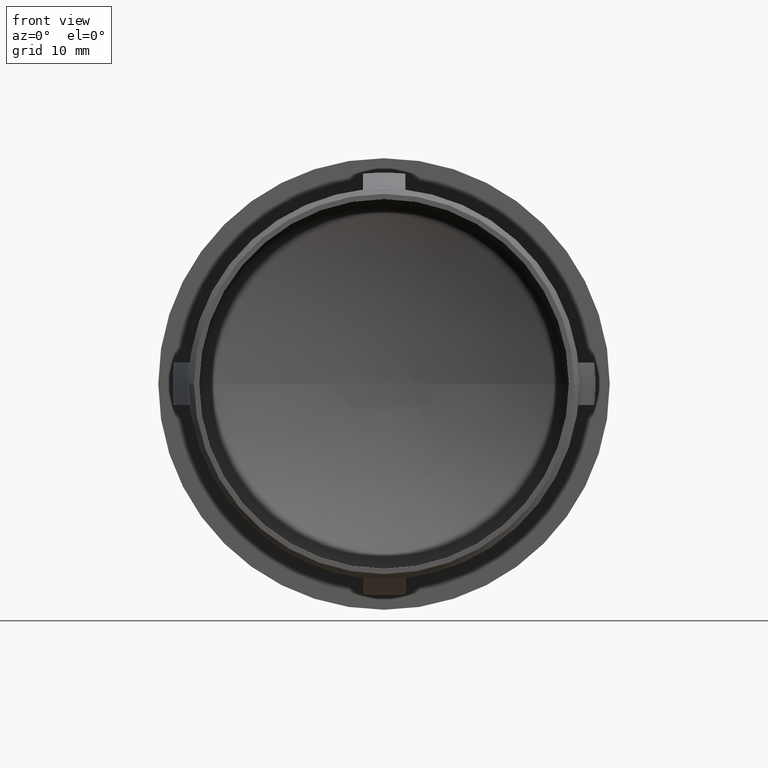
[diagram: clean part render]
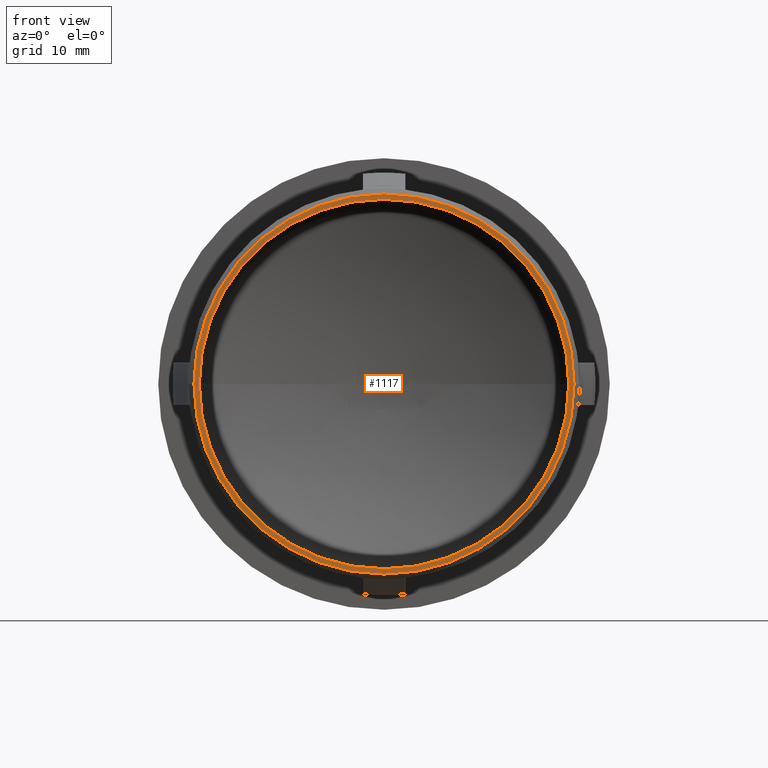
[diagram: same view with one face highlighted and labeled with its STEP entity id]
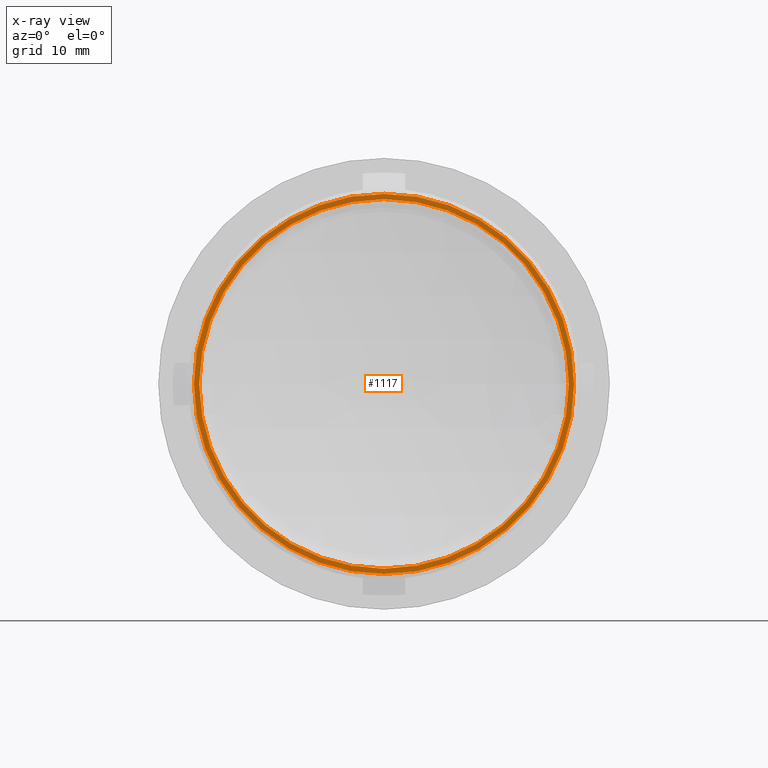
[diagram: x-ray of the same camera — body ghosted, the highlighted face saturated]
A machine part, front view. The second image highlights one B-rep face of the part: STEP entity #1117.
The next image is the same camera in x-ray: the body ghosted, the highlighted face saturated — about 0% of this face is hidden behind the body in this view.
In plain terms, the highlighted planar face has unit normal (0, -1, -0).
Its self-contained STEP definition (entity closure, byte-faithful):
#843 = AXIS2_PLACEMENT_3D ( 'NONE', #8685, #8786, #2730 ) ;
#1069 = DIRECTION ( 'NONE',  ( 1.421951005676655478E-15, -1.000000000000000000, -0.000000000000000000 ) ) ;
#1117 = ADVANCED_FACE ( 'NONE', ( #2623, #8059 ), #13163, .T. ) ;
#1259 = DIRECTION ( 'NONE',  ( 1.421951005676655478E-15, -1.000000000000000000, -0.000000000000000000 ) ) ;
#1292 = AXIS2_PLACEMENT_3D ( 'NONE', #1359, #13342, #14589 ) ;
#1359 = CARTESIAN_POINT ( 'NONE',  ( 4.763535869016798367E-14, -2.775557561562891351E-14, 0.000000000000000000 ) ) ;
#2161 = CARTESIAN_POINT ( 'NONE',  ( -17.84999999999992326, -5.086162264658828411E-14, 0.000000000000000000 ) ) ;
#2314 = CIRCLE ( 'NONE', #1292, 17.34999999999995524 ) ;
#2623 = FACE_OUTER_BOUND ( 'NONE', #5416, .T. ) ;
#2730 = DIRECTION ( 'NONE',  ( 1.000000000000000000, 1.421951005676655478E-15, 0.000000000000000000 ) ) ;
#3424 = AXIS2_PLACEMENT_3D ( 'NONE', #8401, #1259, #3655 ) ;
#3436 = EDGE_CURVE ( 'NONE', #10400, #14406, #6083, .T. ) ;
#3530 = CARTESIAN_POINT ( 'NONE',  ( 18.35000000000000142, 6.130037589065356566E-16, 0.000000000000000000 ) ) ;
#3655 = DIRECTION ( 'NONE',  ( 1.000000000000000000, 1.421951005676655478E-15, 0.000000000000000000 ) ) ;
#4810 = DIRECTION ( 'NONE',  ( 1.421951005676655281E-15, -1.000000000000000000, -0.000000000000000000 ) ) ;
#4938 = AXIS2_PLACEMENT_3D ( 'NONE', #3530, #4810, #14365 ) ;
#5020 = CIRCLE ( 'NONE', #843, 17.84999999999997300 ) ;
#5149 = EDGE_CURVE ( 'NONE', #8644, #12681, #5020, .T. ) ;
#5416 = EDGE_LOOP ( 'NONE', ( #13953, #7065 ) ) ;
#6083 = CIRCLE ( 'NONE', #3424, 17.34999999999995524 ) ;
#6906 = CARTESIAN_POINT ( 'NONE',  ( 17.85000000000002274, -9.797174393176153884E-17, 2.216610706456705235E-15 ) ) ;
#7065 = ORIENTED_EDGE ( 'NONE', *, *, #10969, .T. ) ;
#8059 = FACE_BOUND ( 'NONE', #12418, .T. ) ;
#8401 = CARTESIAN_POINT ( 'NONE',  ( 4.763535869016798367E-14, -2.775557561562891351E-14, 0.000000000000000000 ) ) ;
#8644 = VERTEX_POINT ( 'NONE', #2161 ) ;
#8685 = CARTESIAN_POINT ( 'NONE',  ( 4.763535869016797736E-14, -2.547979719526002286E-14, 0.000000000000000000 ) ) ;
#8786 = DIRECTION ( 'NONE',  ( 1.421951005676655478E-15, -1.000000000000000000, -0.000000000000000000 ) ) ;
#8854 = ORIENTED_EDGE ( 'NONE', *, *, #11055, .F. ) ;
#9005 = ORIENTED_EDGE ( 'NONE', *, *, #3436, .F. ) ;
#9409 = DIRECTION ( 'NONE',  ( 1.000000000000000000, 1.421951005676655478E-15, 0.000000000000000000 ) ) ;
#10400 = VERTEX_POINT ( 'NONE', #15355 ) ;
#10969 = EDGE_CURVE ( 'NONE', #12681, #8644, #11484, .T. ) ;
#11055 = EDGE_CURVE ( 'NONE', #14406, #10400, #2314, .T. ) ;
#11484 = CIRCLE ( 'NONE', #15234, 17.84999999999997300 ) ;
#11617 = CARTESIAN_POINT ( 'NONE',  ( -17.34999999999990550, -5.242642556411882286E-14, 2.124762196520654268E-15 ) ) ;
#12418 = EDGE_LOOP ( 'NONE', ( #9005, #8854 ) ) ;
#12681 = VERTEX_POINT ( 'NONE', #6906 ) ;
#13163 = PLANE ( 'NONE',  #4938 ) ;
#13342 = DIRECTION ( 'NONE',  ( 1.421951005676655478E-15, -1.000000000000000000, -0.000000000000000000 ) ) ;
#13953 = ORIENTED_EDGE ( 'NONE', *, *, #5149, .T. ) ;
#14184 = CARTESIAN_POINT ( 'NONE',  ( 4.763535869016797736E-14, -2.547979719526002286E-14, 0.000000000000000000 ) ) ;
#14365 = DIRECTION ( 'NONE',  ( 1.000000000000000000, 1.421951005676655281E-15, 0.000000000000000000 ) ) ;
#14406 = VERTEX_POINT ( 'NONE', #11617 ) ;
#14589 = DIRECTION ( 'NONE',  ( 1.000000000000000000, 1.421951005676655478E-15, 0.000000000000000000 ) ) ;
#15234 = AXIS2_PLACEMENT_3D ( 'NONE', #14184, #1069, #9409 ) ;
#15355 = CARTESIAN_POINT ( 'NONE',  ( 17.35000000000000497, -3.084725667139003766E-15, 0.000000000000000000 ) ) ;